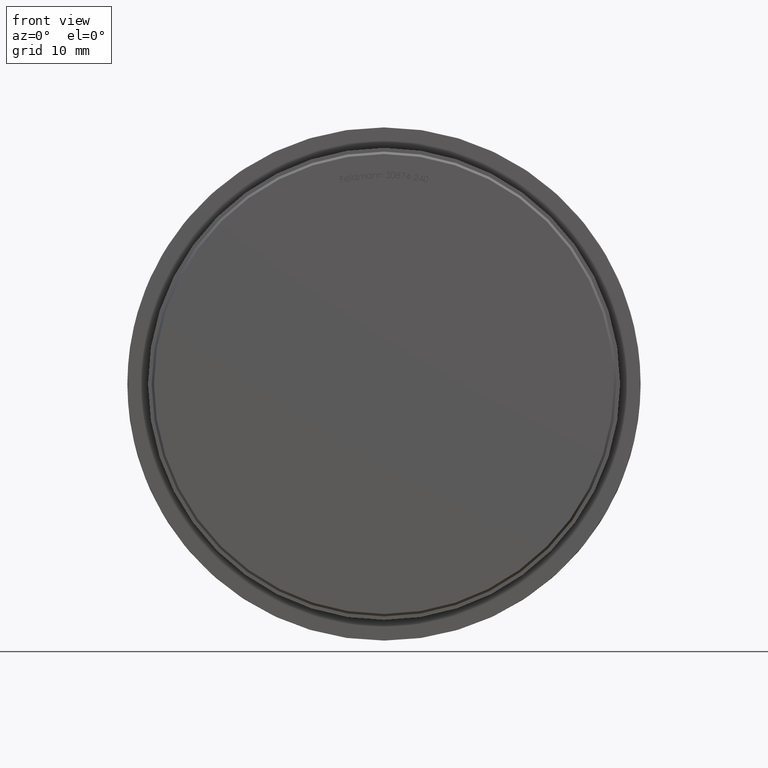
[diagram: clean part render]
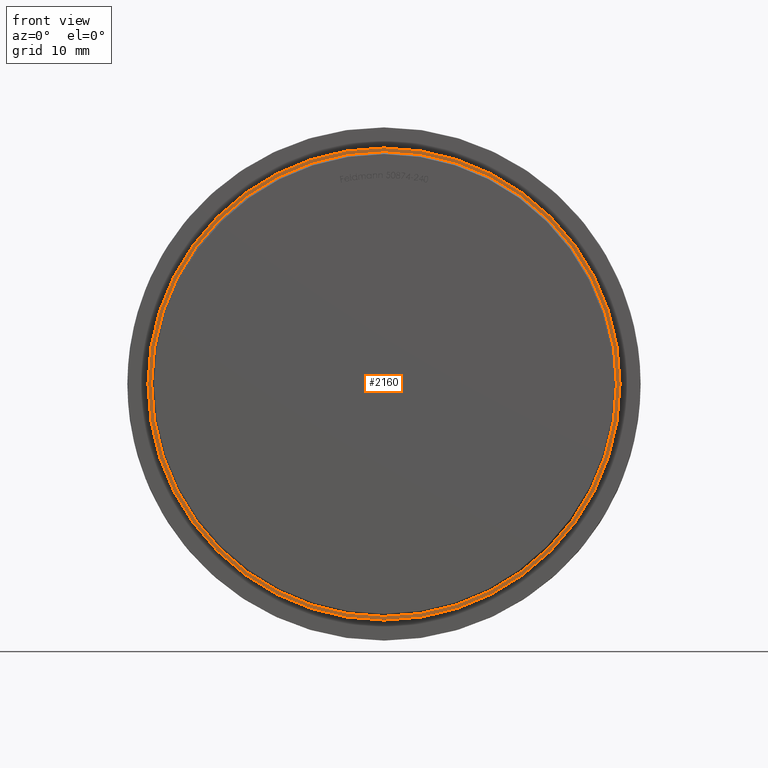
[diagram: same view with one face highlighted and labeled with its STEP entity id]
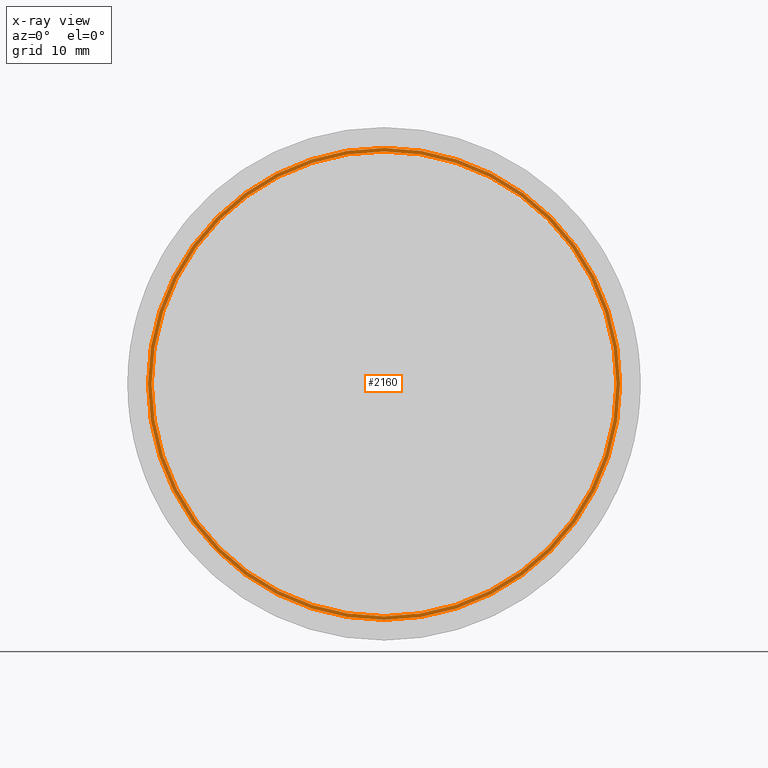
[diagram: x-ray of the same camera — body ghosted, the highlighted face saturated]
A machine part, front view. The second image highlights one B-rep face of the part: STEP entity #2160.
The next image is the same camera in x-ray: the body ghosted, the highlighted face saturated — about 0% of this face is hidden behind the body in this view.
In plain terms, the highlighted planar face has unit normal (0, 1, 0).
Its self-contained STEP definition (entity closure, byte-faithful):
#140 = DIRECTION ( 'NONE',  ( -0.0000000000000000000, -1.000000000000000000, -0.0000000000000000000 ) ) ;
#219 = CARTESIAN_POINT ( 'NONE',  ( 0.0000000000000000000, 2.000000000000000000, 0.0000000000000000000 ) ) ;
#906 = CARTESIAN_POINT ( 'NONE',  ( 0.0000000000000000000, 2.000000000000000000, 0.0000000000000000000 ) ) ;
#979 = CARTESIAN_POINT ( 'NONE',  ( 2.388061258337338900E-015, 2.000000000000000000, 19.50000000000000000 ) ) ;
#1062 = DIRECTION ( 'NONE',  ( 0.0000000000000000000, 0.0000000000000000000, 1.000000000000000000 ) ) ;
#2160 = ADVANCED_FACE ( 'NONE', ( #7096, #8623 ), #3488, .F. ) ;
#2463 = CARTESIAN_POINT ( 'NONE',  ( 0.0000000000000000000, 2.000000000000000000, 0.0000000000000000000 ) ) ;
#2540 = AXIS2_PLACEMENT_3D ( 'NONE', #2463, #5404, #10222 ) ;
#2571 = CARTESIAN_POINT ( 'NONE',  ( 0.0000000000000000000, 2.000000000000000000, 0.0000000000000000000 ) ) ;
#2661 = DIRECTION ( 'NONE',  ( 0.0000000000000000000, -0.0000000000000000000, 1.000000000000000000 ) ) ;
#2791 = EDGE_CURVE ( 'NONE', #3820, #6947, #11250, .T. ) ;
#3488 = PLANE ( 'NONE',  #6972 ) ;
#3820 = VERTEX_POINT ( 'NONE', #12217 ) ;
#5350 = EDGE_CURVE ( 'NONE', #8261, #7852, #8320, .T. ) ;
#5404 = DIRECTION ( 'NONE',  ( 0.0000000000000000000, 1.000000000000000000, 0.0000000000000000000 ) ) ;
#6112 = ORIENTED_EDGE ( 'NONE', *, *, #12102, .F. ) ;
#6947 = VERTEX_POINT ( 'NONE', #8604 ) ;
#6972 = AXIS2_PLACEMENT_3D ( 'NONE', #2571, #11390, #2661 ) ;
#7096 = FACE_BOUND ( 'NONE', #7362, .T. ) ;
#7098 = AXIS2_PLACEMENT_3D ( 'NONE', #7898, #7940, #1062 ) ;
#7362 = EDGE_LOOP ( 'NONE', ( #10669, #6112 ) ) ;
#7852 = VERTEX_POINT ( 'NONE', #11252 ) ;
#7898 = CARTESIAN_POINT ( 'NONE',  ( 0.0000000000000000000, 2.000000000000000000, 0.0000000000000000000 ) ) ;
#7940 = DIRECTION ( 'NONE',  ( 0.0000000000000000000, 1.000000000000000000, 0.0000000000000000000 ) ) ;
#7955 = DIRECTION ( 'NONE',  ( -0.0000000000000000000, -1.000000000000000000, -0.0000000000000000000 ) ) ;
#8261 = VERTEX_POINT ( 'NONE', #979 ) ;
#8320 = CIRCLE ( 'NONE', #2540, 19.50000000000000000 ) ;
#8604 = CARTESIAN_POINT ( 'NONE',  ( 2.351321854362917700E-015, 2.000000000000000000, -19.19999999999999600 ) ) ;
#8623 = FACE_OUTER_BOUND ( 'NONE', #11218, .T. ) ;
#8733 = CIRCLE ( 'NONE', #7098, 19.50000000000000000 ) ;
#9045 = DIRECTION ( 'NONE',  ( 0.0000000000000000000, 0.0000000000000000000, 1.000000000000000000 ) ) ;
#9859 = AXIS2_PLACEMENT_3D ( 'NONE', #906, #7955, #10940 ) ;
#10079 = ORIENTED_EDGE ( 'NONE', *, *, #5350, .F. ) ;
#10222 = DIRECTION ( 'NONE',  ( 0.0000000000000000000, 0.0000000000000000000, 1.000000000000000000 ) ) ;
#10294 = EDGE_CURVE ( 'NONE', #7852, #8261, #8733, .T. ) ;
#10669 = ORIENTED_EDGE ( 'NONE', *, *, #2791, .F. ) ;
#10940 = DIRECTION ( 'NONE',  ( 0.0000000000000000000, 0.0000000000000000000, 1.000000000000000000 ) ) ;
#11218 = EDGE_LOOP ( 'NONE', ( #11980, #10079 ) ) ;
#11250 = CIRCLE ( 'NONE', #9859, 19.19999999999999600 ) ;
#11252 = CARTESIAN_POINT ( 'NONE',  ( 0.0000000000000000000, 2.000000000000000000, -19.50000000000000000 ) ) ;
#11390 = DIRECTION ( 'NONE',  ( 0.0000000000000000000, 1.000000000000000000, 0.0000000000000000000 ) ) ;
#11980 = ORIENTED_EDGE ( 'NONE', *, *, #10294, .F. ) ;
#12102 = EDGE_CURVE ( 'NONE', #6947, #3820, #12297, .T. ) ;
#12123 = AXIS2_PLACEMENT_3D ( 'NONE', #219, #140, #9045 ) ;
#12217 = CARTESIAN_POINT ( 'NONE',  ( 0.0000000000000000000, 2.000000000000000000, 19.19999999999999600 ) ) ;
#12297 = CIRCLE ( 'NONE', #12123, 19.19999999999999600 ) ;